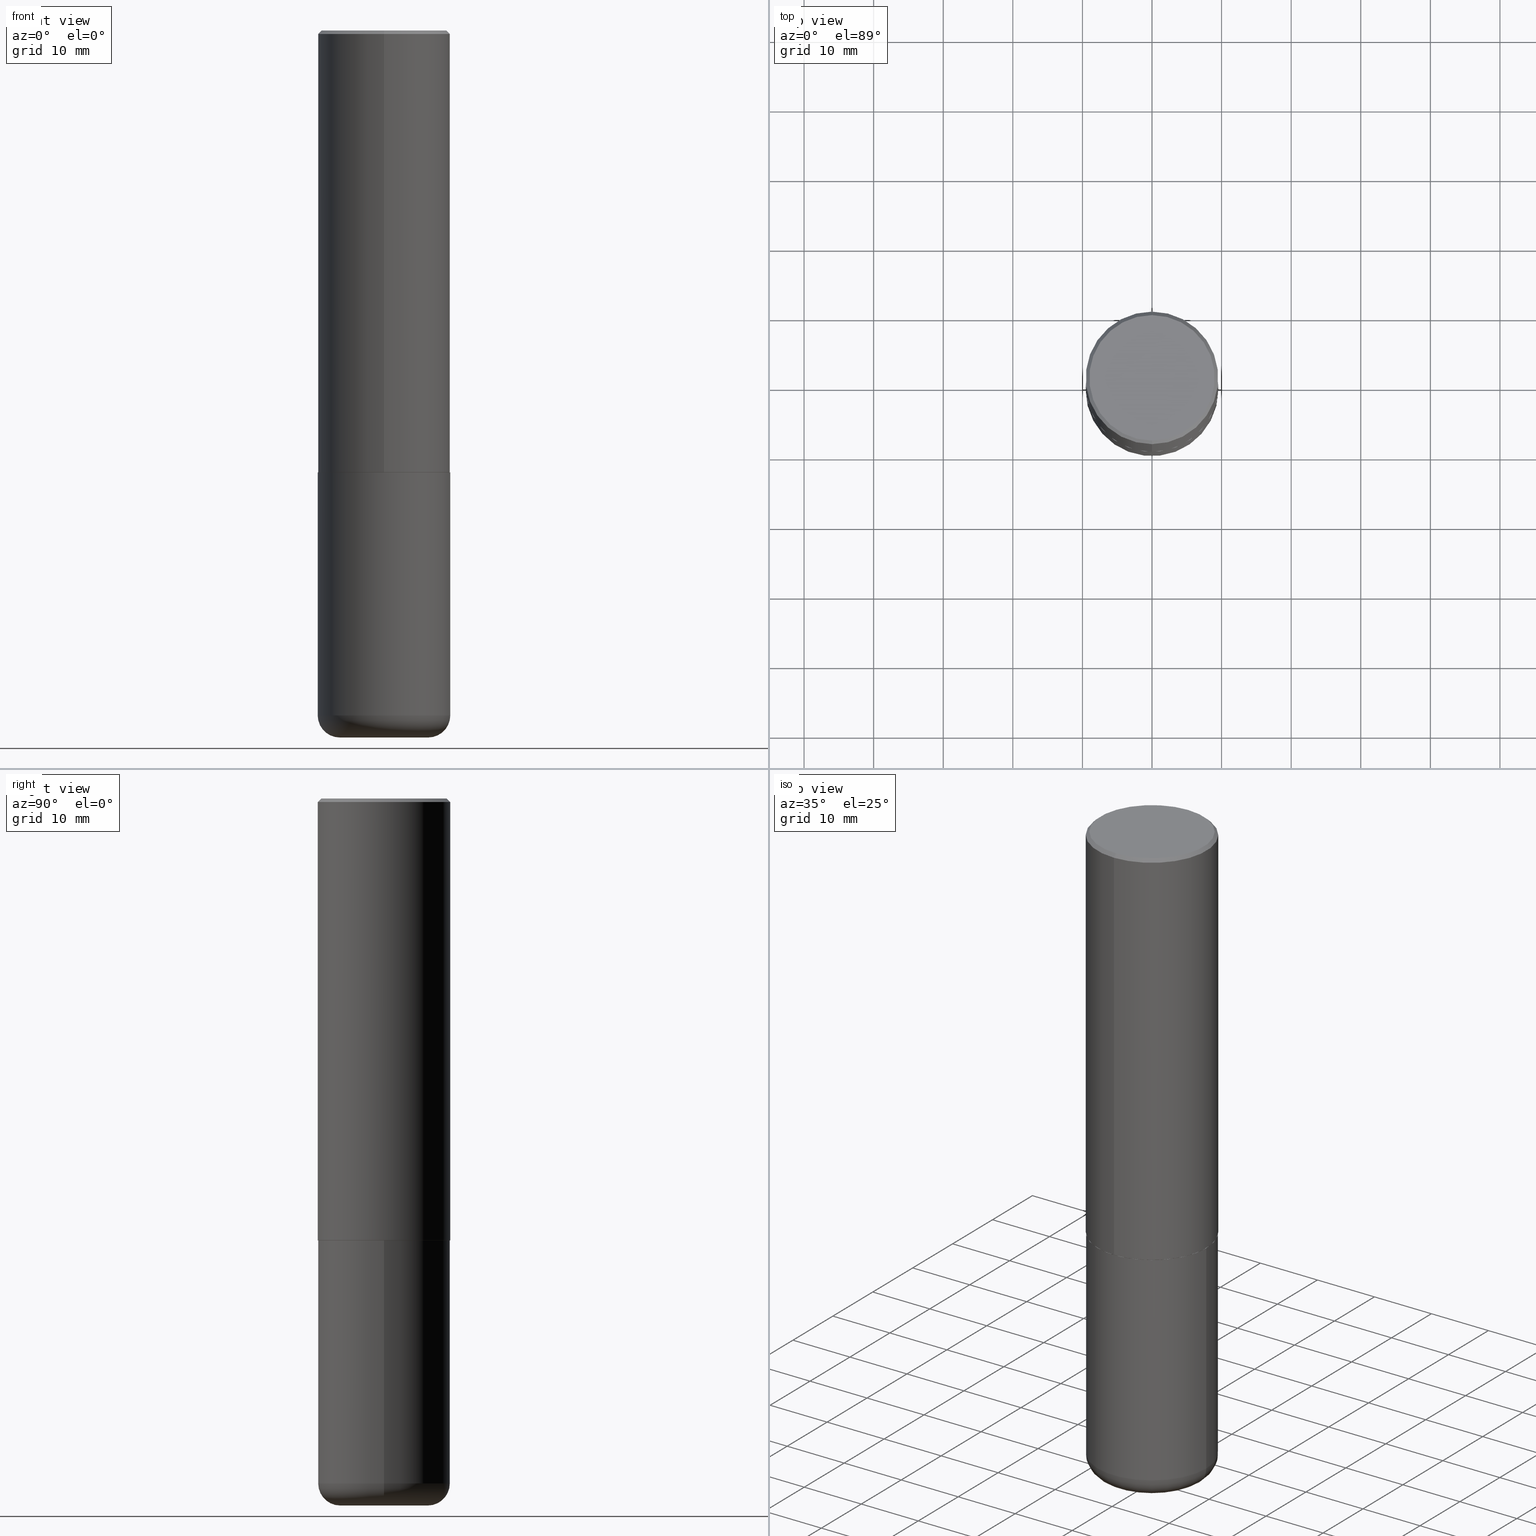
[diagram: canonical four-view strip — front | top / right | iso, engineering-drawing reading convention]
A machine part, canonical four-view strip (front | top / right | iso — engineering-drawing reading convention). The complete STEP part file that produces these views, byte-faithful:
ISO-10303-21;
HEADER;
FILE_DESCRIPTION (( 'STEP AP203' ),
    '1' );
FILE_NAME ('38349.STEP',
    '2024-03-03T00:10:55',
    ( '' ),
    ( '' ),
    'SwSTEP 2.0',
    'SolidWorks 2023',
    '' );
FILE_SCHEMA (( 'CONFIG_CONTROL_DESIGN' ));
ENDSEC;

DATA;
#1 = MANIFOLD_SOLID_BREP ( 'Body-Move/Copy2[2]', #265 ) ;
#2 = CARTESIAN_POINT ( 'NONE',  ( -0.2500000000000000555, -1.175313334861693862E-14, -3.875000000000000000 ) ) ;
#3 = CARTESIAN_POINT ( 'NONE',  ( 6.113101053843864340E-29, -8.722527464786612949E-15, -2.498999999999999666 ) ) ;
#4 = CIRCLE ( 'NONE', #260, 0.1249999999999999306 ) ;
#5 = LOCAL_TIME ( 19, 10, 55.00000000000000000, #374 ) ;
#6 = CARTESIAN_POINT ( 'NONE',  ( 0.3749999999999999445, -1.614810119214953752E-14, -3.875000000000000000 ) ) ;
#7 = ADVANCED_FACE ( 'NONE', ( #17 ), #244, .T. ) ;
#8 = DIRECTION ( 'NONE',  ( -2.446218909101186334E-29, 3.490407148774155485E-15, 1.000000000000000000 ) ) ;
#9 = DIRECTION ( 'NONE',  ( -2.445468806185136597E-29, 3.491481338843145583E-15, 1.000000000000000000 ) ) ;
#10 = ORIENTED_EDGE ( 'NONE', *, *, #323, .F. ) ;
#11 = FACE_OUTER_BOUND ( 'NONE', #261, .T. ) ;
#12 = VECTOR ( 'NONE', #139, 39.37007874015748143 ) ;
#13 = LOCAL_TIME ( 19, 10, 55.00000000000000000, #415 ) ;
#14 = EDGE_CURVE ( 'NONE', #279, #78, #354, .T. ) ;
#15 = CYLINDRICAL_SURFACE ( 'NONE', #101, 0.3749999999999999445 ) ;
#16 = CARTESIAN_POINT ( 'NONE',  ( 6.115547272752966956E-29, -8.726017871935389897E-15, -2.500000000000000000 ) ) ;
#17 = FACE_OUTER_BOUND ( 'NONE', #106, .T. ) ;
#18 = DIRECTION ( 'NONE',  ( -6.982962677686265922E-15, -1.000000000000000000, 3.494488891895536035E-15 ) ) ;
#19 = CLOSED_SHELL ( 'NONE', ( #160, #7, #133, #316, #120, #32 ) ) ;
#20 = CARTESIAN_POINT ( 'NONE',  ( -2.572686749164323547E-15, -0.3750000000000001110, -0.01999999999999877570 ) ) ;
#21 = ORIENTED_EDGE ( 'NONE', *, *, #262, .F. ) ;
#22 = ORIENTED_EDGE ( 'NONE', *, *, #68, .F. ) ;
#23 = DIRECTION ( 'NONE',  ( -6.982962677686265922E-15, -1.000000000000000000, 3.494488891895536035E-15 ) ) ;
#24 = PLANE ( 'NONE',  #170 ) ;
#25 = VERTEX_POINT ( 'NONE', #389 ) ;
#26 = APPROVAL ( #278, 'UNSPECIFIED' ) ;
#27 = DIMENSIONAL_EXPONENTS ( 1.000000000000000000, 0.000000000000000000, 0.000000000000000000, 0.000000000000000000, 0.000000000000000000, 0.000000000000000000, 0.000000000000000000 ) ;
#28 = DIRECTION ( 'NONE',  ( 4.937700262164543309E-15, 0.7071067811865444641, -0.7071067811865505703 ) ) ;
#29 = COORDINATED_UNIVERSAL_TIME_OFFSET ( 5, 0, .BEHIND. ) ;
#30 = AXIS2_PLACEMENT_3D ( 'NONE', #16, #145, #395 ) ;
#31 = FACE_OUTER_BOUND ( 'NONE', #249, .T. ) ;
#32 = ADVANCED_FACE ( 'NONE', ( #255 ), #332, .T. ) ;
#33 = LINE ( 'NONE', #97, #44 ) ;
#34 = EDGE_CURVE ( 'NONE', #88, #48, #319, .T. ) ;
#35 = CARTESIAN_POINT ( 'NONE',  ( -0.2500000000000000555, -1.152726172244457105E-14, -4.000000000000000000 ) ) ;
#36 = DIRECTION ( 'NONE',  ( 1.000000000000000000, -6.982962677686263555E-15, 0.000000000000000000 ) ) ;
#37 = ORIENTED_EDGE ( 'NONE', *, *, #205, .F. ) ;
#38 =( CONVERSION_BASED_UNIT ( 'INCH', #330 ) LENGTH_UNIT ( ) NAMED_UNIT ( #27 ) );
#39 =( NAMED_UNIT ( * ) PLANE_ANGLE_UNIT ( ) SI_UNIT ( $, .RADIAN. ) );
#40 = DIRECTION ( 'NONE',  ( -6.982962677686266711E-15, -1.000000000000000000, 2.913971193241878794E-15 ) ) ;
#41 = VECTOR ( 'NONE', #287, 39.37007874015748143 ) ;
#42 = CARTESIAN_POINT ( 'NONE',  ( 0.000000000000000000, 0.000000000000000000, 0.000000000000000000 ) ) ;
#43 = EDGE_CURVE ( 'NONE', #25, #208, #185, .T. ) ;
#44 = VECTOR ( 'NONE', #369, 39.37007874015748143 ) ;
#45 = DIRECTION ( 'NONE',  ( -6.982962677686265922E-15, -1.000000000000000000, 3.490407148774155485E-15 ) ) ;
#46 = CARTESIAN_POINT ( 'NONE',  ( 9.781875224740546387E-29, -1.396592535537258233E-14, -4.000000000000000000 ) ) ;
#47 = ORIENTED_EDGE ( 'NONE', *, *, #256, .F. ) ;
#48 = VERTEX_POINT ( 'NONE', #91 ) ;
#49 = EDGE_CURVE ( 'NONE', #254, #78, #406, .T. ) ;
#50 = ORIENTED_EDGE ( 'NONE', *, *, #403, .T. ) ;
#51 = AXIS2_PLACEMENT_3D ( 'NONE', #3, #8, #40 ) ;
#52 = CARTESIAN_POINT ( 'NONE',  ( 6.483192248959793905E-45, -9.250595066719118931E-31, -2.650291118607169846E-16 ) ) ;
#53 = SHAPE_DEFINITION_REPRESENTATION ( #284, #152 ) ;
#54 = ORIENTED_EDGE ( 'NONE', *, *, #14, .T. ) ;
#55 = CC_DESIGN_PERSON_AND_ORGANIZATION_ASSIGNMENT ( #375, #75, ( #348 ) ) ;
#56 = APPROVAL_DATE_TIME ( #213, #248 ) ;
#57 = DESIGN_CONTEXT ( 'detailed design', #367, 'design' ) ;
#58 = APPROVAL_ROLE ( '' ) ;
#59 = FACE_OUTER_BOUND ( 'NONE', #235, .T. ) ;
#60 = PERSON_AND_ORGANIZATION ( #118, #372 ) ;
#61 = DIRECTION ( 'NONE',  ( -2.446218909101186334E-29, 3.490407148774155485E-15, 1.000000000000000000 ) ) ;
#62 = AXIS2_PLACEMENT_3D ( 'NONE', #180, #83, #382 ) ;
#63 = FACE_OUTER_BOUND ( 'NONE', #195, .T. ) ;
#64 = DATE_TIME_ROLE ( 'creation_date' ) ;
#65 = DIRECTION ( 'NONE',  ( -1.000000000000000000, 7.105427357601000281E-15, 0.000000000000000000 ) ) ;
#66 = AXIS2_PLACEMENT_3D ( 'NONE', #52, #179, #45 ) ;
#67 = DIRECTION ( 'NONE',  ( -6.982962677686266711E-15, -1.000000000000000000, 2.921762560068730595E-15 ) ) ;
#68 = EDGE_CURVE ( 'NONE', #48, #208, #114, .T. ) ;
#69 = CARTESIAN_POINT ( 'NONE',  ( -0.3749999999999999445, 2.664535259100375303E-15, -1.844600658845589318E-29 ) ) ;
#70 = AXIS2_PLACEMENT_3D ( 'NONE', #268, #203, #105 ) ;
#71 = CONICAL_SURFACE ( 'NONE', #388, 0.3750000000000000555, 0.7853981633974473908 ) ;
#72 = CARTESIAN_POINT ( 'NONE',  ( -2.618611004132290852E-15, -0.3750000000000090483, -2.498999999999998778 ) ) ;
#73 = ORIENTED_EDGE ( 'NONE', *, *, #14, .F. ) ;
#74 = APPROVAL_ROLE ( '' ) ;
#75 = PERSON_AND_ORGANIZATION_ROLE ( 'design_owner' ) ;
#76 = DIRECTION ( 'NONE',  ( -2.446218909101186334E-29, 3.490407148774155485E-15, 1.000000000000000000 ) ) ;
#77 = ORIENTED_EDGE ( 'NONE', *, *, #186, .F. ) ;
#78 = VERTEX_POINT ( 'NONE', #150 ) ;
#79 = ORIENTED_EDGE ( 'NONE', *, *, #205, .T. ) ;
#80 = DIRECTION ( 'NONE',  ( 2.438088387897960049E-29, -3.491481338843145188E-15, -1.000000000000000000 ) ) ;
#81 = DATE_AND_TIME ( #241, #360 ) ;
#82 = VECTOR ( 'NONE', #149, 39.37007874015748854 ) ;
#83 = DIRECTION ( 'NONE',  ( -2.446218909101186334E-29, 3.490407148774155485E-15, 1.000000000000000000 ) ) ;
#84 = CALENDAR_DATE ( 2024, 2, 3 ) ;
#85 = DIRECTION ( 'NONE',  ( -2.446218909101186334E-29, 3.490407148774155485E-15, 1.000000000000000000 ) ) ;
#86 = ORIENTED_EDGE ( 'NONE', *, *, #68, .T. ) ;
#87 = APPROVAL_ROLE ( '' ) ;
#88 = VERTEX_POINT ( 'NONE', #404 ) ;
#89 = CALENDAR_DATE ( 2024, 2, 3 ) ;
#90 = CARTESIAN_POINT ( 'NONE',  ( 6.113672015462840371E-29, -8.728703347107863365E-15, -2.499999999999999556 ) ) ;
#91 = CARTESIAN_POINT ( 'NONE',  ( 2.618611004132350411E-15, 0.3749999999999999445, -0.02000000000000139513 ) ) ;
#92 = ADVANCED_FACE ( 'NONE', ( #302 ), #411, .F. ) ;
#93 = ORIENTED_EDGE ( 'NONE', *, *, #186, .T. ) ;
#94 = EDGE_LOOP ( 'NONE', ( #214, #314, #352, #130 ) ) ;
#95 = DIRECTION ( 'NONE',  ( 1.000000000000000000, -6.982962677686266711E-15, 4.876176775795935793E-29 ) ) ;
#96 = CIRCLE ( 'NONE', #192, 0.3739999999999999991 ) ;
#97 = CARTESIAN_POINT ( 'NONE',  ( -2.618611004132351200E-15, -0.3750000000000001665, 1.308902680790308800E-15 ) ) ;
#98 = COORDINATED_UNIVERSAL_TIME_OFFSET ( 5, 0, .BEHIND. ) ;
#99 = DIRECTION ( 'NONE',  ( -4.937700262164378437E-15, -0.7071067811865208164, 0.7071067811865739960 ) ) ;
#100 = DIRECTION ( 'NONE',  ( -2.445468806185136597E-29, 3.491481338843145583E-15, 1.000000000000000000 ) ) ;
#101 = AXIS2_PLACEMENT_3D ( 'NONE', #42, #104, #356 ) ;
#102 = APPROVAL_PERSON_ORGANIZATION ( #119, #248, #58 ) ;
#103 = EDGE_CURVE ( 'NONE', #208, #48, #387, .T. ) ;
#104 = DIRECTION ( 'NONE',  ( -2.445468806185136597E-29, 3.491481338843145583E-15, 1.000000000000000000 ) ) ;
#105 = DIRECTION ( 'NONE',  ( -6.982962677686266711E-15, -1.000000000000000000, 2.921762560068730595E-15 ) ) ;
#106 = EDGE_LOOP ( 'NONE', ( #191, #410, #112, #10 ) ) ;
#107 = CC_DESIGN_APPROVAL ( #248, ( #379 ) ) ;
#108 = CYLINDRICAL_SURFACE ( 'NONE', #218, 0.3750000000000001665 ) ;
#109 = DIRECTION ( 'NONE',  ( 6.982962677686265922E-15, 1.000000000000000000, -3.490407148774155485E-15 ) ) ;
#110 = ORIENTED_EDGE ( 'NONE', *, *, #362, .F. ) ;
#111 = DIRECTION ( 'NONE',  ( -2.445468806185136597E-29, 3.491481338843145583E-15, 1.000000000000000000 ) ) ;
#112 = ORIENTED_EDGE ( 'NONE', *, *, #166, .F. ) ;
#113 = ORIENTED_EDGE ( 'NONE', *, *, #173, .F. ) ;
#114 = CIRCLE ( 'NONE', #151, 0.3750000000000000555 ) ;
#115 = CC_DESIGN_PERSON_AND_ORGANIZATION_ASSIGNMENT ( #60, #409, ( #171 ) ) ;
#116 = PERSON_AND_ORGANIZATION ( #118, #372 ) ;
#117 = ORIENTED_EDGE ( 'NONE', *, *, #43, .F. ) ;
#118 = PERSON ( 'UNSPECIFIED', 'UNSPECIFIED', 'UNSPECIFIED', ('UNSPECIFIED'), ('UNSPECIFIED'), ('UNSPECIFIED') ) ;
#119 = PERSON_AND_ORGANIZATION ( #118, #372 ) ;
#120 = ADVANCED_FACE ( 'NONE', ( #59 ), #273, .T. ) ;
#121 = AXIS2_PLACEMENT_3D ( 'NONE', #156, #357, #324 ) ;
#122 = PERSON_AND_ORGANIZATION ( #118, #372 ) ;
#123 = AXIS2_PLACEMENT_3D ( 'NONE', #135, #131, #228 ) ;
#124 = CARTESIAN_POINT ( 'NONE',  ( -0.3750000000000000555, -8.464561508462150527E-15, -2.499999999999999556 ) ) ;
#125 = ORIENTED_EDGE ( 'NONE', *, *, #232, .T. ) ;
#126 = CARTESIAN_POINT ( 'NONE',  ( 4.892437818202393302E-31, -6.980814297548341687E-17, -0.02000000000000008715 ) ) ;
#127 = AXIS2_PLACEMENT_3D ( 'NONE', #240, #9, #141 ) ;
#128 = CIRCLE ( 'NONE', #318, 0.3750000000000000555 ) ;
#129 = ADVANCED_FACE ( 'NONE', ( #247 ), #142, .T. ) ;
#130 = ORIENTED_EDGE ( 'NONE', *, *, #403, .F. ) ;
#131 = DIRECTION ( 'NONE',  ( -2.445468806185136597E-29, 3.491481338843145583E-15, 1.000000000000000000 ) ) ;
#132 = CARTESIAN_POINT ( 'NONE',  ( 2.664535259100376486E-15, 0.3750000000000001665, -1.308902680790308800E-15 ) ) ;
#133 = ADVANCED_FACE ( 'NONE', ( #188 ), #24, .F. ) ;
#134 = CARTESIAN_POINT ( 'NONE',  ( 0.000000000000000000, 0.000000000000000000, 0.000000000000000000 ) ) ;
#135 = CARTESIAN_POINT ( 'NONE',  ( 6.113672015462840371E-29, -8.728703347107863365E-15, -2.499999999999999556 ) ) ;
#136 = VERTEX_POINT ( 'NONE', #124 ) ;
#137 = CARTESIAN_POINT ( 'NONE',  ( 4.892437818202393302E-31, -6.980814297548341687E-17, -0.02000000000000008715 ) ) ;
#138 = ORIENTED_EDGE ( 'NONE', *, *, #166, .T. ) ;
#139 = DIRECTION ( 'NONE',  ( -2.445468806185136877E-29, 3.491481338843145188E-15, 1.000000000000000000 ) ) ;
#140 = DIRECTION ( 'NONE',  ( 0.000000000000000000, 0.000000000000000000, 1.000000000000000000 ) ) ;
#141 = DIRECTION ( 'NONE',  ( 1.000000000000000000, -6.982962677686269077E-15, 0.000000000000000000 ) ) ;
#142 = CONICAL_SURFACE ( 'NONE', #162, 0.3750000000000000555, 0.7853981633974473908 ) ;
#143 = EDGE_LOOP ( 'NONE', ( #282, #269, #233, #37 ) ) ;
#144 = ORIENTED_EDGE ( 'NONE', *, *, #323, .T. ) ;
#145 = DIRECTION ( 'NONE',  ( -2.446218909101186054E-29, 3.490407148774155485E-15, 1.000000000000000000 ) ) ;
#146 = ORIENTED_EDGE ( 'NONE', *, *, #267, .F. ) ;
#147 = CC_DESIGN_PERSON_AND_ORGANIZATION_ASSIGNMENT ( #122, #252, ( #295 ) ) ;
#148 = CALENDAR_DATE ( 2024, 2, 3 ) ;
#149 = DIRECTION ( 'NONE',  ( 5.024295867787889629E-15, 0.7071067811865257013, 0.7071067811865691111 ) ) ;
#150 = CARTESIAN_POINT ( 'NONE',  ( 2.664535259100408040E-15, 0.3749999999999915623, -2.499000000000000998 ) ) ;
#151 = AXIS2_PLACEMENT_3D ( 'NONE', #126, #85, #18 ) ;
#152 = ADVANCED_BREP_SHAPE_REPRESENTATION ( '38349', ( #288, #1, #292 ), #393 ) ;
#153 = DIRECTION ( 'NONE',  ( 6.982962677686265922E-15, 1.000000000000000000, -3.494488891895536035E-15 ) ) ;
#154 = ORIENTED_EDGE ( 'NONE', *, *, #384, .F. ) ;
#155 = PERSON_AND_ORGANIZATION ( #118, #372 ) ;
#156 = CARTESIAN_POINT ( 'NONE',  ( 9.476191623967404313E-29, -1.352949018801718908E-14, -3.875000000000000000 ) ) ;
#157 = CONICAL_SURFACE ( 'NONE', #70, 0.3739999999999999991, 0.7853981633974141952 ) ;
#158 = APPROVAL_PERSON_ORGANIZATION ( #246, #193, #87 ) ;
#159 = CARTESIAN_POINT ( 'NONE',  ( 2.618611004132350411E-15, 0.3749999999999999445, -0.02000000000000139513 ) ) ;
#160 = ADVANCED_FACE ( 'NONE', ( #31 ), #293, .T. ) ;
#161 = DIRECTION ( 'NONE',  ( 1.000000000000000000, -6.982962677686264344E-15, 0.000000000000000000 ) ) ;
#162 = AXIS2_PLACEMENT_3D ( 'NONE', #190, #355, #153 ) ;
#163 = CARTESIAN_POINT ( 'NONE',  ( 6.483192248959793905E-45, -9.250595066719118931E-31, -2.650291118607169846E-16 ) ) ;
#164 = LINE ( 'NONE', #298, #274 ) ;
#165 = LINE ( 'NONE', #132, #398 ) ;
#166 = EDGE_CURVE ( 'NONE', #238, #229, #371, .T. ) ;
#167 = DIRECTION ( 'NONE',  ( 7.105427357601001859E-15, 1.000000000000000000, -3.491481338843145583E-15 ) ) ;
#168 = DIRECTION ( 'NONE',  ( -2.446218909101186334E-29, 3.490407148774155485E-15, 1.000000000000000000 ) ) ;
#169 = VERTEX_POINT ( 'NONE', #35 ) ;
#170 = AXIS2_PLACEMENT_3D ( 'NONE', #90, #322, #417 ) ;
#171 = SECURITY_CLASSIFICATION ( '', '', #390 ) ;
#172 = FACE_OUTER_BOUND ( 'NONE', #175, .T. ) ;
#173 = EDGE_CURVE ( 'NONE', #254, #271, #96, .T. ) ;
#174 = CARTESIAN_POINT ( 'NONE',  ( -2.572686749164323547E-15, -0.3750000000000001110, -0.01999999999999877570 ) ) ;
#175 = EDGE_LOOP ( 'NONE', ( #343, #113 ) ) ;
#176 = ORIENTED_EDGE ( 'NONE', *, *, #221, .T. ) ;
#177 = CONICAL_SURFACE ( 'NONE', #217, 0.3739999999999999991, 0.7853981633974141952 ) ;
#178 = CARTESIAN_POINT ( 'NONE',  ( 9.476191623967404313E-29, -1.352949018801718908E-14, -3.875000000000000000 ) ) ;
#179 = DIRECTION ( 'NONE',  ( -2.446218909101186334E-29, 3.490407148774155485E-15, 1.000000000000000000 ) ) ;
#180 = CARTESIAN_POINT ( 'NONE',  ( 6.113101053843864340E-29, -8.722527464786612949E-15, -2.498999999999999666 ) ) ;
#181 = PRODUCT_RELATED_PRODUCT_CATEGORY ( 'detail', '', ( #348 ) ) ;
#182 = CALENDAR_DATE ( 2024, 2, 3 ) ;
#183 = AXIS2_PLACEMENT_3D ( 'NONE', #226, #363, #36 ) ;
#184 = VECTOR ( 'NONE', #264, 39.37007874015748143 ) ;
#185 = LINE ( 'NONE', #20, #41 ) ;
#186 = EDGE_CURVE ( 'NONE', #25, #88, #227, .T. ) ;
#187 = ORIENTED_EDGE ( 'NONE', *, *, #200, .F. ) ;
#188 = FACE_OUTER_BOUND ( 'NONE', #216, .T. ) ;
#189 = PERSON_AND_ORGANIZATION_ROLE ( 'creator' ) ;
#190 = CARTESIAN_POINT ( 'NONE',  ( 4.892437818202393302E-31, -6.980814297548341687E-17, -0.02000000000000008715 ) ) ;
#191 = ORIENTED_EDGE ( 'NONE', *, *, #262, .T. ) ;
#192 = AXIS2_PLACEMENT_3D ( 'NONE', #331, #397, #67 ) ;
#193 = APPROVAL ( #383, 'UNSPECIFIED' ) ;
#194 = CARTESIAN_POINT ( 'NONE',  ( 0.000000000000000000, 0.000000000000000000, 0.000000000000000000 ) ) ;
#195 = EDGE_LOOP ( 'NONE', ( #54, #253, #377, #243 ) ) ;
#196 = PERSON_AND_ORGANIZATION_ROLE ( 'creator' ) ;
#197 = AXIS2_PLACEMENT_3D ( 'NONE', #137, #61, #23 ) ;
#198 = EDGE_LOOP ( 'NONE', ( #304, #93 ) ) ;
#199 = CARTESIAN_POINT ( 'NONE',  ( 4.892437818202393302E-31, -6.980814297548341687E-17, -0.02000000000000008715 ) ) ;
#200 = EDGE_CURVE ( 'NONE', #78, #48, #165, .T. ) ;
#201 = CIRCLE ( 'NONE', #123, 0.3750000000000000555 ) ;
#202 =( LENGTH_UNIT ( ) NAMED_UNIT ( * ) SI_UNIT ( $, .METRE. ) );
#203 = DIRECTION ( 'NONE',  ( -2.446218909101186334E-29, 3.490407148774155485E-15, 1.000000000000000000 ) ) ;
#204 = CIRCLE ( 'NONE', #313, 0.1249999999999999306 ) ;
#205 = EDGE_CURVE ( 'NONE', #78, #279, #210, .T. ) ;
#206 = DIRECTION ( 'NONE',  ( 1.000000000000000000, -6.982962677686263555E-15, 0.000000000000000000 ) ) ;
#207 = CARTESIAN_POINT ( 'NONE',  ( -2.611628041454602471E-15, -0.3740000000000087699, -2.499999999999999112 ) ) ;
#208 = VERTEX_POINT ( 'NONE', #174 ) ;
#209 = CARTESIAN_POINT ( 'NONE',  ( -0.3749999999999999445, -1.086495492891681496E-14, -3.875000000000000000 ) ) ;
#210 = CIRCLE ( 'NONE', #51, 0.3750000000000002776 ) ;
#211 = CC_DESIGN_SECURITY_CLASSIFICATION ( #171, ( #295 ) ) ;
#212 = CARTESIAN_POINT ( 'NONE',  ( 2.478951750578626181E-15, 0.3550000000000002598, -1.371609093745184381E-15 ) ) ;
#213 = DATE_AND_TIME ( #84, #345 ) ;
#214 = ORIENTED_EDGE ( 'NONE', *, *, #232, .F. ) ;
#215 = ORIENTED_EDGE ( 'NONE', *, *, #34, .F. ) ;
#216 = EDGE_LOOP ( 'NONE', ( #358, #50 ) ) ;
#217 = AXIS2_PLACEMENT_3D ( 'NONE', #350, #276, #407 ) ;
#218 = AXIS2_PLACEMENT_3D ( 'NONE', #134, #263, #394 ) ;
#219 = CC_DESIGN_PERSON_AND_ORGANIZATION_ASSIGNMENT ( #351, #189, ( #379 ) ) ;
#220 = APPROVAL_DATE_TIME ( #353, #193 ) ;
#221 = EDGE_CURVE ( 'NONE', #271, #254, #258, .T. ) ;
#222 = AXIS2_PLACEMENT_3D ( 'NONE', #334, #80, #294 ) ;
#223 = CC_DESIGN_APPROVAL ( #26, ( #171 ) ) ;
#224 = LINE ( 'NONE', #364, #184 ) ;
#225 = CARTESIAN_POINT ( 'NONE',  ( 6.113672015462840371E-29, -8.728703347107863365E-15, -2.499999999999999556 ) ) ;
#226 = CARTESIAN_POINT ( 'NONE',  ( 9.476191623967404313E-29, -1.352949018801718908E-14, -3.875000000000000000 ) ) ;
#227 = CIRCLE ( 'NONE', #312, 0.3550000000000002598 ) ;
#228 = DIRECTION ( 'NONE',  ( 1.000000000000000000, -6.982962677686264344E-15, 0.000000000000000000 ) ) ;
#229 = VERTEX_POINT ( 'NONE', #209 ) ;
#230 = EDGE_LOOP ( 'NONE', ( #21, #47 ) ) ;
#231 = CARTESIAN_POINT ( 'NONE',  ( 6.115547272752966956E-29, -8.726017871935389897E-15, -2.500000000000000000 ) ) ;
#232 = EDGE_CURVE ( 'NONE', #229, #136, #277, .T. ) ;
#233 = ORIENTED_EDGE ( 'NONE', *, *, #349, .T. ) ;
#234 = CARTESIAN_POINT ( 'NONE',  ( 2.660982545421636724E-15, 0.3739999999999912839, -2.500000000000001332 ) ) ;
#235 = EDGE_LOOP ( 'NONE', ( #154, #412, #144, #146 ) ) ;
#236 = FACE_OUTER_BOUND ( 'NONE', #143, .T. ) ;
#237 = APPLICATION_PROTOCOL_DEFINITION ( 'international standard', 'config_control_design', 1994, #275 ) ;
#238 = VERTEX_POINT ( 'NONE', #6 ) ;
#239 = ADVANCED_FACE ( 'NONE', ( #340 ), #157, .T. ) ;
#240 = CARTESIAN_POINT ( 'NONE',  ( 9.781875224740546387E-29, -1.396592535537258233E-14, -4.000000000000000000 ) ) ;
#241 = CALENDAR_DATE ( 2024, 2, 3 ) ;
#242 = EDGE_LOOP ( 'NONE', ( #77, #307, #347, #215 ) ) ;
#243 = ORIENTED_EDGE ( 'NONE', *, *, #418, .F. ) ;
#244 = TOROIDAL_SURFACE ( 'NONE', #416, 0.2500000000000000555, 0.1249999999999999167 ) ;
#245 = DIRECTION ( 'NONE',  ( -2.445468806185136597E-29, 3.491481338843145583E-15, 1.000000000000000000 ) ) ;
#246 = PERSON_AND_ORGANIZATION ( #118, #372 ) ;
#247 = FACE_OUTER_BOUND ( 'NONE', #399, .T. ) ;
#248 = APPROVAL ( #359, 'UNSPECIFIED' ) ;
#249 = EDGE_LOOP ( 'NONE', ( #138, #125, #110, #386 ) ) ;
#250 = AXIS2_PLACEMENT_3D ( 'NONE', #46, #111, #270 ) ;
#251 = APPROVAL_PERSON_ORGANIZATION ( #116, #26, #74 ) ;
#252 = PERSON_AND_ORGANIZATION_ROLE ( 'design_supplier' ) ;
#253 = ORIENTED_EDGE ( 'NONE', *, *, #200, .T. ) ;
#254 = VERTEX_POINT ( 'NONE', #234 ) ;
#255 = FACE_OUTER_BOUND ( 'NONE', #230, .T. ) ;
#256 = EDGE_CURVE ( 'NONE', #169, #402, #259, .T. ) ;
#257 = CARTESIAN_POINT ( 'NONE',  ( 0.000000000000000000, 0.000000000000000000, 0.000000000000000000 ) ) ;
#258 = CIRCLE ( 'NONE', #336, 0.3739999999999999991 ) ;
#259 = CIRCLE ( 'NONE', #250, 0.2500000000000000555 ) ;
#260 = AXIS2_PLACEMENT_3D ( 'NONE', #392, #289, #281 ) ;
#261 = EDGE_LOOP ( 'NONE', ( #187, #79, #320, #22 ) ) ;
#262 = EDGE_CURVE ( 'NONE', #402, #169, #317, .T. ) ;
#263 = DIRECTION ( 'NONE',  ( -2.446218909101186334E-29, 3.490407148774155485E-15, 1.000000000000000000 ) ) ;
#264 = DIRECTION ( 'NONE',  ( -2.445468806185136877E-29, 3.491481338843145188E-15, 1.000000000000000000 ) ) ;
#265 = CLOSED_SHELL ( 'NONE', ( #239, #333, #339, #129, #326, #297, #291, #92 ) ) ;
#266 = CARTESIAN_POINT ( 'NONE',  ( 0.2500000000000000555, -1.571166602479415059E-14, -4.000000000000000000 ) ) ;
#267 = EDGE_CURVE ( 'NONE', #229, #238, #405, .T. ) ;
#268 = CARTESIAN_POINT ( 'NONE',  ( 6.115547272752966956E-29, -8.726017871935389897E-15, -2.500000000000000000 ) ) ;
#269 = ORIENTED_EDGE ( 'NONE', *, *, #173, .T. ) ;
#270 = DIRECTION ( 'NONE',  ( 1.000000000000000000, -6.982962677686269077E-15, 0.000000000000000000 ) ) ;
#271 = VERTEX_POINT ( 'NONE', #207 ) ;
#272 = DIRECTION ( 'NONE',  ( 1.000000000000000000, 0.000000000000000000, 0.000000000000000000 ) ) ;
#273 = TOROIDAL_SURFACE ( 'NONE', #121, 0.2500000000000000555, 0.1249999999999999167 ) ;
#274 = VECTOR ( 'NONE', #99, 39.37007874015748854 ) ;
#275 = APPLICATION_CONTEXT ( 'configuration controlled 3d designs of mechanical parts and assemblies' ) ;
#276 = DIRECTION ( 'NONE',  ( -2.446218909101186334E-29, 3.490407148774155485E-15, 1.000000000000000000 ) ) ;
#277 = LINE ( 'NONE', #69, #12 ) ;
#278 = APPROVAL_STATUS ( 'not_yet_approved' ) ;
#279 = VERTEX_POINT ( 'NONE', #72 ) ;
#280 = VERTEX_POINT ( 'NONE', #344 ) ;
#281 = DIRECTION ( 'NONE',  ( 1.000000000000000000, -6.982962677686266711E-15, 0.000000000000000000 ) ) ;
#282 = ORIENTED_EDGE ( 'NONE', *, *, #49, .F. ) ;
#283 = CARTESIAN_POINT ( 'NONE',  ( 2.657429831742835431E-15, 0.3739999999999912839, -2.500000000000001332 ) ) ;
#284 = PRODUCT_DEFINITION_SHAPE ( 'NONE', 'NONE',  #379 ) ;
#285 = DATE_AND_TIME ( #148, #5 ) ;
#286 = EDGE_CURVE ( 'NONE', #88, #25, #290, .T. ) ;
#287 = DIRECTION ( 'NONE',  ( -4.851104656540959542E-15, -0.7071067811865493491, -0.7071067811865456854 ) ) ;
#288 = MANIFOLD_SOLID_BREP ( 'Body-Move/Copy2[1]', #19 ) ;
#289 = DIRECTION ( 'NONE',  ( -6.982962677686266711E-15, -1.000000000000000000, 3.491481338843145583E-15 ) ) ;
#290 = CIRCLE ( 'NONE', #66, 0.3550000000000002598 ) ;
#291 = ADVANCED_FACE ( 'NONE', ( #172 ), #306, .F. ) ;
#292 = AXIS2_PLACEMENT_3D ( 'NONE', #342, #140, #272 ) ;
#293 = CYLINDRICAL_SURFACE ( 'NONE', #413, 0.3749999999999999445 ) ;
#294 = DIRECTION ( 'NONE',  ( -1.000000000000000000, 6.982962677686265922E-15, -4.876176775795935793E-29 ) ) ;
#295 = PRODUCT_DEFINITION_FORMATION_WITH_SPECIFIED_SOURCE ( 'ANY', '', #348, .NOT_KNOWN. ) ;
#296 = DIRECTION ( 'NONE',  ( -6.982962677686266711E-15, -1.000000000000000000, 3.490407148774155091E-15 ) ) ;
#297 = ADVANCED_FACE ( 'NONE', ( #236 ), #177, .T. ) ;
#298 = CARTESIAN_POINT ( 'NONE',  ( -2.611628041454602471E-15, -0.3740000000000087699, -2.499999999999999112 ) ) ;
#299 = EDGE_LOOP ( 'NONE', ( #176, #380, #73, #308 ) ) ;
#300 = DIRECTION ( 'NONE',  ( -2.446218909101186334E-29, 3.490407148774155485E-15, 1.000000000000000000 ) ) ;
#301 = CC_DESIGN_PERSON_AND_ORGANIZATION_ASSIGNMENT ( #155, #196, ( #295 ) ) ;
#302 = FACE_OUTER_BOUND ( 'NONE', #198, .T. ) ;
#303 = VECTOR ( 'NONE', #28, 39.37007874015748143 ) ;
#304 = ORIENTED_EDGE ( 'NONE', *, *, #286, .T. ) ;
#305 = ORIENTED_EDGE ( 'NONE', *, *, #34, .T. ) ;
#306 = PLANE ( 'NONE',  #30 ) ;
#307 = ORIENTED_EDGE ( 'NONE', *, *, #43, .T. ) ;
#308 = ORIENTED_EDGE ( 'NONE', *, *, #349, .F. ) ;
#309 = CC_DESIGN_DATE_AND_TIME_ASSIGNMENT ( #321, #64, ( #379 ) ) ;
#310 = DIRECTION ( 'NONE',  ( 2.446218909101186054E-29, -3.490407148774155485E-15, -1.000000000000000000 ) ) ;
#311 = APPLICATION_PROTOCOL_DEFINITION ( 'international standard', 'config_control_design', 1994, #367 ) ;
#312 = AXIS2_PLACEMENT_3D ( 'NONE', #163, #168, #365 ) ;
#313 = AXIS2_PLACEMENT_3D ( 'NONE', #2, #167, #65 ) ;
#314 = ORIENTED_EDGE ( 'NONE', *, *, #267, .T. ) ;
#315 = FACE_OUTER_BOUND ( 'NONE', #94, .T. ) ;
#316 = ADVANCED_FACE ( 'NONE', ( #315 ), #15, .T. ) ;
#317 = CIRCLE ( 'NONE', #127, 0.2500000000000000555 ) ;
#318 = AXIS2_PLACEMENT_3D ( 'NONE', #225, #100, #161 ) ;
#319 = LINE ( 'NONE', #159, #303 ) ;
#320 = ORIENTED_EDGE ( 'NONE', *, *, #418, .T. ) ;
#321 = DATE_AND_TIME ( #182, #328 ) ;
#322 = DIRECTION ( 'NONE',  ( 2.438088387897960049E-29, -3.491481338843145188E-15, -1.000000000000000000 ) ) ;
#323 = EDGE_CURVE ( 'NONE', #402, #238, #4, .T. ) ;
#324 = DIRECTION ( 'NONE',  ( 1.000000000000000000, -6.982962677686263555E-15, 4.883557194083111219E-29 ) ) ;
#325 = FACE_OUTER_BOUND ( 'NONE', #242, .T. ) ;
#326 = ADVANCED_FACE ( 'NONE', ( #11 ), #108, .T. ) ;
#327 = DIRECTION ( 'NONE',  ( 6.982962677686265922E-15, 1.000000000000000000, -3.494488891895536035E-15 ) ) ;
#328 = LOCAL_TIME ( 19, 10, 55.00000000000000000, #98 ) ;
#329 = CYLINDRICAL_SURFACE ( 'NONE', #368, 0.3750000000000001665 ) ;
#330 = LENGTH_MEASURE_WITH_UNIT ( LENGTH_MEASURE( 0.02539999999999999897 ), #202 );
#331 = CARTESIAN_POINT ( 'NONE',  ( 6.115547272752966956E-29, -8.726017871935389897E-15, -2.500000000000000000 ) ) ;
#332 = PLANE ( 'NONE',  #222 ) ;
#333 = ADVANCED_FACE ( 'NONE', ( #63 ), #329, .T. ) ;
#334 = CARTESIAN_POINT ( 'NONE',  ( 9.781875224740546387E-29, -1.396592535537258233E-14, -4.000000000000000000 ) ) ;
#335 = CC_DESIGN_DATE_AND_TIME_ASSIGNMENT ( #285, #414, ( #171 ) ) ;
#336 = AXIS2_PLACEMENT_3D ( 'NONE', #231, #76, #376 ) ;
#337 = MECHANICAL_CONTEXT ( 'NONE', #275, 'mechanical' ) ;
#338 = CARTESIAN_POINT ( 'NONE',  ( 9.476191623967404313E-29, -1.352949018801718908E-14, -3.875000000000000000 ) ) ;
#339 = ADVANCED_FACE ( 'NONE', ( #325 ), #71, .T. ) ;
#340 = FACE_OUTER_BOUND ( 'NONE', #299, .T. ) ;
#341 = ORIENTED_EDGE ( 'NONE', *, *, #286, .F. ) ;
#342 = CARTESIAN_POINT ( 'NONE',  ( 0.000000000000000000, 0.000000000000000000, 0.000000000000000000 ) ) ;
#343 = ORIENTED_EDGE ( 'NONE', *, *, #221, .F. ) ;
#344 = CARTESIAN_POINT ( 'NONE',  ( 0.3750000000000000555, -1.134731435124021180E-14, -2.499999999999999556 ) ) ;
#345 = LOCAL_TIME ( 19, 10, 55.00000000000000000, #29 ) ;
#346 = APPROVAL_DATE_TIME ( #81, #26 ) ;
#347 = ORIENTED_EDGE ( 'NONE', *, *, #103, .T. ) ;
#348 = PRODUCT ( '38349', '38349', '', ( #337 ) ) ;
#349 = EDGE_CURVE ( 'NONE', #271, #279, #164, .T. ) ;
#350 = CARTESIAN_POINT ( 'NONE',  ( 6.115547272752966956E-29, -8.726017871935389897E-15, -2.500000000000000000 ) ) ;
#351 = PERSON_AND_ORGANIZATION ( #118, #372 ) ;
#352 = ORIENTED_EDGE ( 'NONE', *, *, #370, .T. ) ;
#353 = DATE_AND_TIME ( #89, #13 ) ;
#354 = CIRCLE ( 'NONE', #62, 0.3750000000000002776 ) ;
#355 = DIRECTION ( 'NONE',  ( 2.446218909101186334E-29, -3.490407148774155485E-15, -1.000000000000000000 ) ) ;
#356 = DIRECTION ( 'NONE',  ( 1.000000000000000000, -6.982962677686266711E-15, 4.876176775795935793E-29 ) ) ;
#357 = DIRECTION ( 'NONE',  ( -2.445468806185136597E-29, 3.491481338843145583E-15, 1.000000000000000000 ) ) ;
#358 = ORIENTED_EDGE ( 'NONE', *, *, #362, .T. ) ;
#359 = APPROVAL_STATUS ( 'not_yet_approved' ) ;
#360 = LOCAL_TIME ( 19, 10, 55.00000000000000000, #408 ) ;
#361 =( NAMED_UNIT ( * ) SI_UNIT ( $, .STERADIAN. ) SOLID_ANGLE_UNIT ( ) );
#362 = EDGE_CURVE ( 'NONE', #280, #136, #128, .T. ) ;
#363 = DIRECTION ( 'NONE',  ( -2.445468806185136597E-29, 3.491481338843145583E-15, 1.000000000000000000 ) ) ;
#364 = CARTESIAN_POINT ( 'NONE',  ( 0.3749999999999999445, -2.618611004132349622E-15, 1.828566290923475642E-29 ) ) ;
#365 = DIRECTION ( 'NONE',  ( -6.982962677686265922E-15, -1.000000000000000000, 3.490407148774155485E-15 ) ) ;
#366 = AXIS2_PLACEMENT_3D ( 'NONE', #338, #373, #206 ) ;
#367 = APPLICATION_CONTEXT ( 'configuration controlled 3d designs of mechanical parts and assemblies' ) ;
#368 = AXIS2_PLACEMENT_3D ( 'NONE', #194, #401, #296 ) ;
#369 = DIRECTION ( 'NONE',  ( -2.446218909101186334E-29, 3.490407148774155485E-15, 1.000000000000000000 ) ) ;
#370 = EDGE_CURVE ( 'NONE', #238, #280, #224, .T. ) ;
#371 = CIRCLE ( 'NONE', #183, 0.3749999999999999445 ) ;
#372 = ORGANIZATION ( 'UNSPECIFIED', 'UNSPECIFIED', '' ) ;
#373 = DIRECTION ( 'NONE',  ( -2.445468806185136597E-29, 3.491481338843145583E-15, 1.000000000000000000 ) ) ;
#374 = COORDINATED_UNIVERSAL_TIME_OFFSET ( 5, 0, .BEHIND. ) ;
#375 = PERSON_AND_ORGANIZATION ( #118, #372 ) ;
#376 = DIRECTION ( 'NONE',  ( -6.982962677686266711E-15, -1.000000000000000000, 2.921762560068730595E-15 ) ) ;
#377 = ORIENTED_EDGE ( 'NONE', *, *, #103, .F. ) ;
#378 = AXIS2_PLACEMENT_3D ( 'NONE', #212, #310, #109 ) ;
#379 = PRODUCT_DEFINITION ( 'UNKNOWN', '', #295, #57 ) ;
#380 = ORIENTED_EDGE ( 'NONE', *, *, #49, .T. ) ;
#381 = DIRECTION ( 'NONE',  ( 1.000000000000000000, -6.982962677686263555E-15, 4.883557194083111219E-29 ) ) ;
#382 = DIRECTION ( 'NONE',  ( -6.982962677686266711E-15, -1.000000000000000000, 2.913971193241878794E-15 ) ) ;
#383 = APPROVAL_STATUS ( 'not_yet_approved' ) ;
#384 = EDGE_CURVE ( 'NONE', #169, #229, #204, .T. ) ;
#385 = UNCERTAINTY_MEASURE_WITH_UNIT (LENGTH_MEASURE( 1.000000000000000082E-05 ), #38, 'distance_accuracy_value', 'NONE');
#386 = ORIENTED_EDGE ( 'NONE', *, *, #370, .F. ) ;
#387 = CIRCLE ( 'NONE', #197, 0.3750000000000000555 ) ;
#388 = AXIS2_PLACEMENT_3D ( 'NONE', #199, #396, #327 ) ;
#389 = CARTESIAN_POINT ( 'NONE',  ( -2.504081769186609399E-15, -0.3550000000000002598, 9.740654259541092244E-16 ) ) ;
#390 = SECURITY_CLASSIFICATION_LEVEL ( 'unclassified' ) ;
#391 = DIRECTION ( 'NONE',  ( -2.445468806185136597E-29, 3.491481338843145583E-15, 1.000000000000000000 ) ) ;
#392 = CARTESIAN_POINT ( 'NONE',  ( 0.2500000000000000555, -1.527523085743875734E-14, -3.875000000000000000 ) ) ;
#393 =( GEOMETRIC_REPRESENTATION_CONTEXT ( 3 ) GLOBAL_UNCERTAINTY_ASSIGNED_CONTEXT ( ( #385 ) ) GLOBAL_UNIT_ASSIGNED_CONTEXT ( ( #38, #39, #361 ) ) REPRESENTATION_CONTEXT ( 'NONE', 'WORKASPACE' ) );
#394 = DIRECTION ( 'NONE',  ( -6.982962677686266711E-15, -1.000000000000000000, 3.490407148774155091E-15 ) ) ;
#395 = DIRECTION ( 'NONE',  ( -6.982962677686265922E-15, -1.000000000000000000, 3.490407148774155485E-15 ) ) ;
#396 = DIRECTION ( 'NONE',  ( 2.446218909101186334E-29, -3.490407148774155485E-15, -1.000000000000000000 ) ) ;
#397 = DIRECTION ( 'NONE',  ( -2.446218909101186334E-29, 3.490407148774155485E-15, 1.000000000000000000 ) ) ;
#398 = VECTOR ( 'NONE', #300, 39.37007874015748143 ) ;
#399 = EDGE_LOOP ( 'NONE', ( #117, #341, #305, #86 ) ) ;
#400 = CC_DESIGN_APPROVAL ( #193, ( #295 ) ) ;
#401 = DIRECTION ( 'NONE',  ( -2.446218909101186334E-29, 3.490407148774155485E-15, 1.000000000000000000 ) ) ;
#402 = VERTEX_POINT ( 'NONE', #266 ) ;
#403 = EDGE_CURVE ( 'NONE', #136, #280, #201, .T. ) ;
#404 = CARTESIAN_POINT ( 'NONE',  ( 2.548781377355488296E-15, 0.3550000000000002598, -1.504123649675543292E-15 ) ) ;
#405 = CIRCLE ( 'NONE', #366, 0.3749999999999999445 ) ;
#406 = LINE ( 'NONE', #283, #82 ) ;
#407 = DIRECTION ( 'NONE',  ( -6.982962677686266711E-15, -1.000000000000000000, 2.921762560068730595E-15 ) ) ;
#408 = COORDINATED_UNIVERSAL_TIME_OFFSET ( 5, 0, .BEHIND. ) ;
#409 = PERSON_AND_ORGANIZATION_ROLE ( 'classification_officer' ) ;
#410 = ORIENTED_EDGE ( 'NONE', *, *, #384, .T. ) ;
#411 = PLANE ( 'NONE',  #378 ) ;
#412 = ORIENTED_EDGE ( 'NONE', *, *, #256, .T. ) ;
#413 = AXIS2_PLACEMENT_3D ( 'NONE', #257, #391, #95 ) ;
#414 = DATE_TIME_ROLE ( 'classification_date' ) ;
#415 = COORDINATED_UNIVERSAL_TIME_OFFSET ( 5, 0, .BEHIND. ) ;
#416 = AXIS2_PLACEMENT_3D ( 'NONE', #178, #245, #381 ) ;
#417 = DIRECTION ( 'NONE',  ( -1.000000000000000000, 6.982962677686265922E-15, -4.876176775795935793E-29 ) ) ;
#418 = EDGE_CURVE ( 'NONE', #279, #208, #33, .T. ) ;
ENDSEC;
END-ISO-10303-21;
